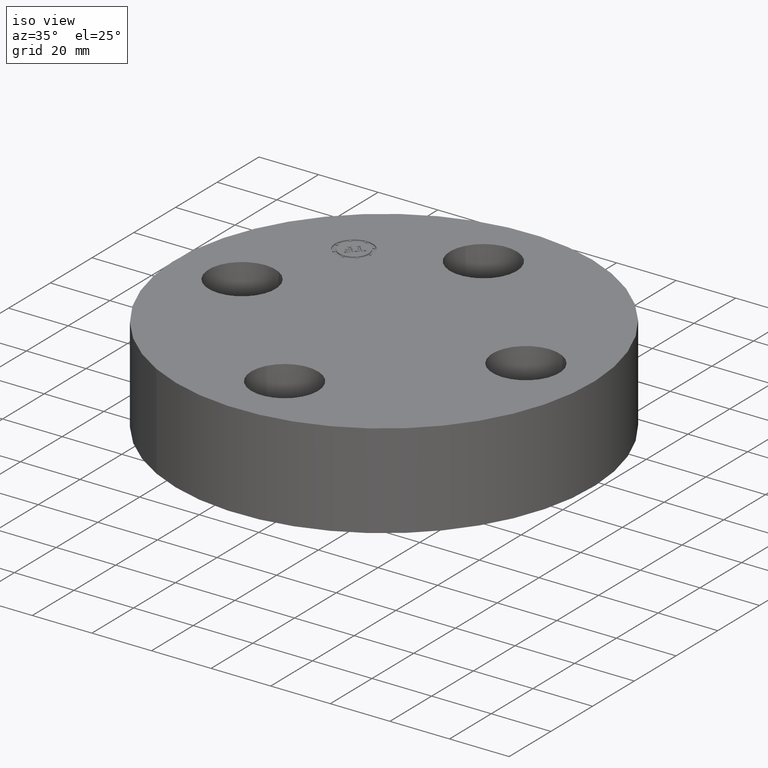
[diagram: clean part render]
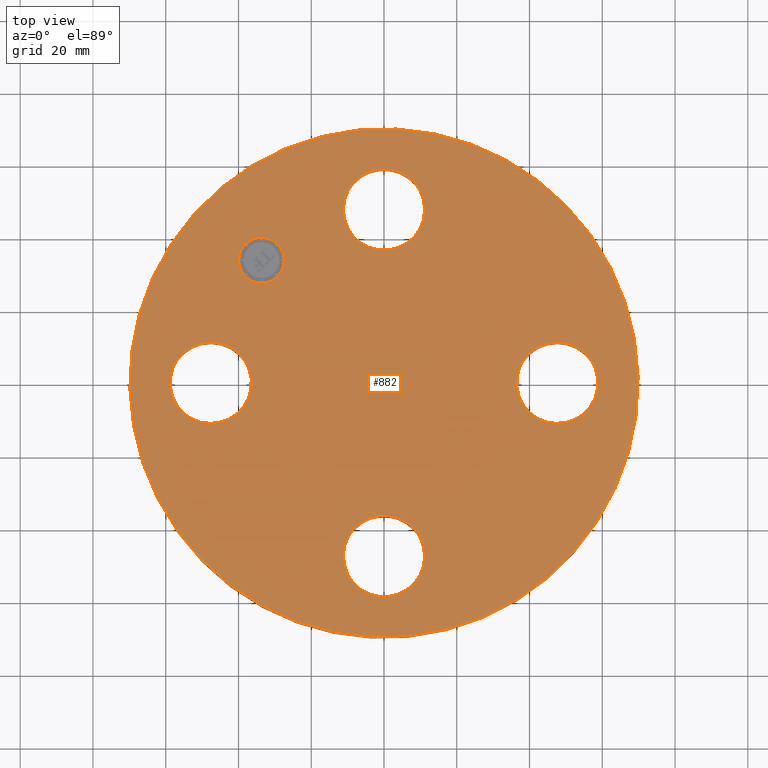
[diagram: tour spotlight — one face highlighted and labeled with its STEP entity id]
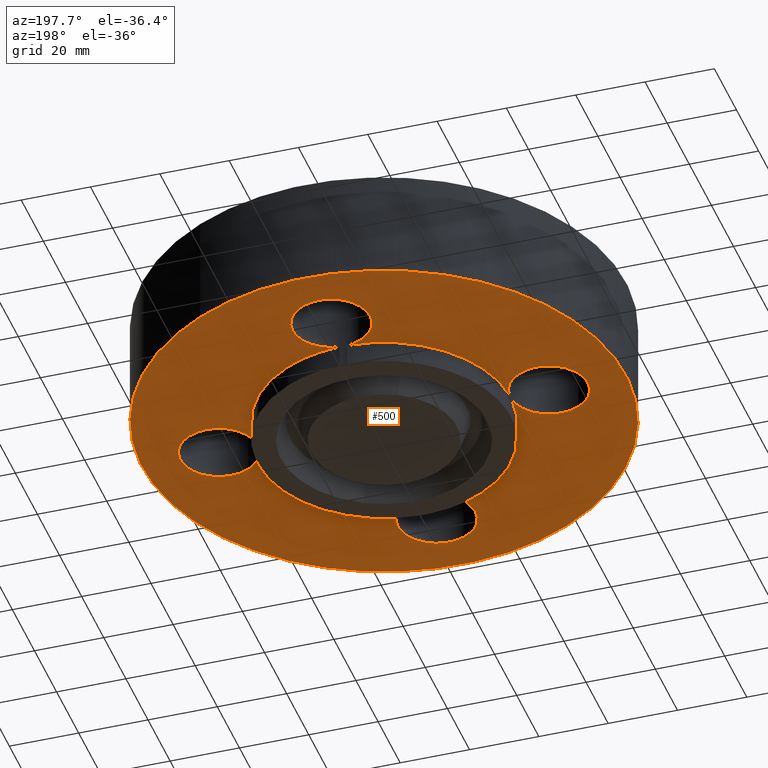
[diagram: tour spotlight — one face highlighted and labeled with its STEP entity id]
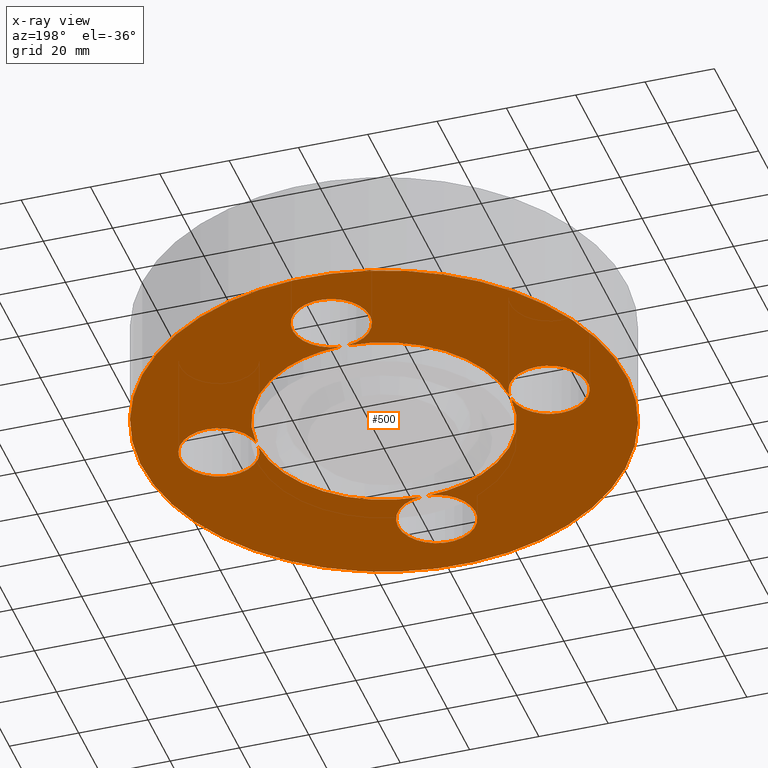
[diagram: x-ray of the same camera — body ghosted, this tour face saturated]
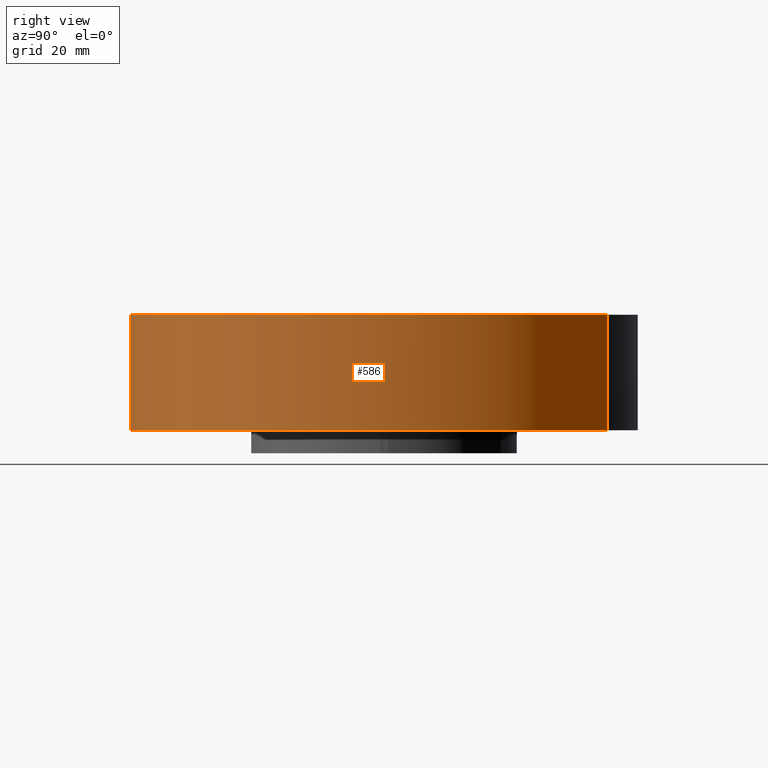
[diagram: tour spotlight — one face highlighted and labeled with its STEP entity id]
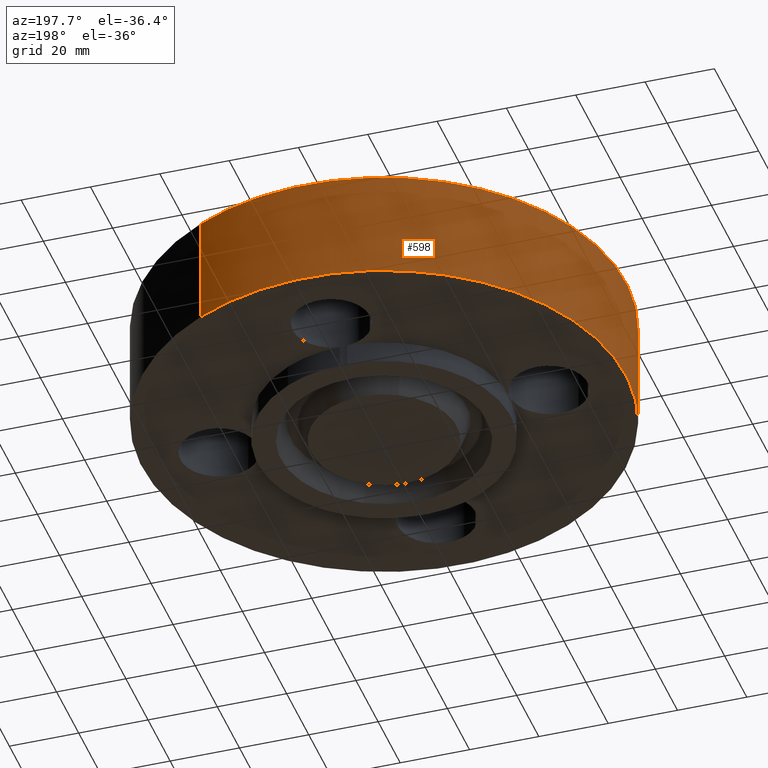
[diagram: tour spotlight — one face highlighted and labeled with its STEP entity id]
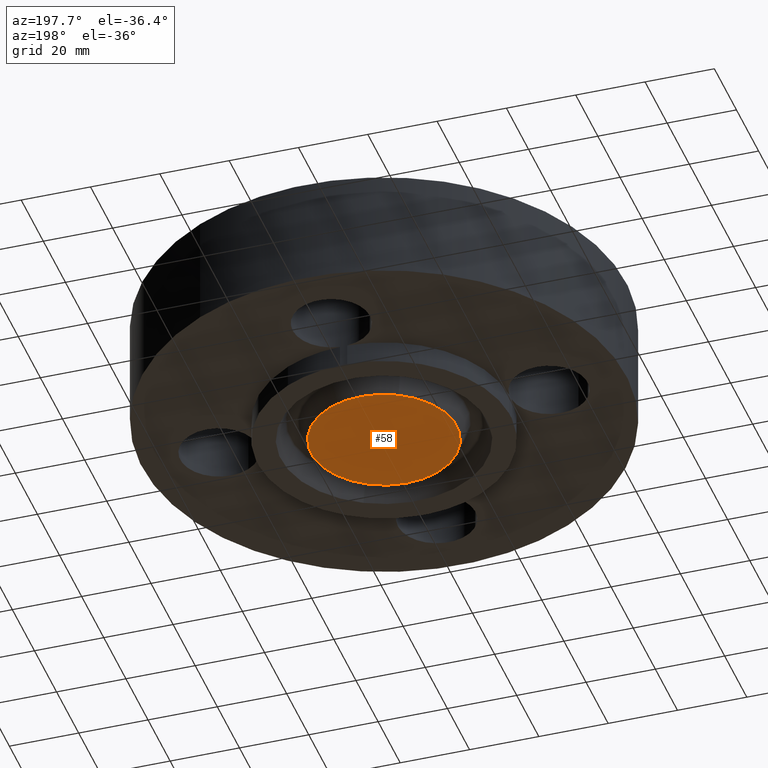
[diagram: tour spotlight — one face highlighted and labeled with its STEP entity id]
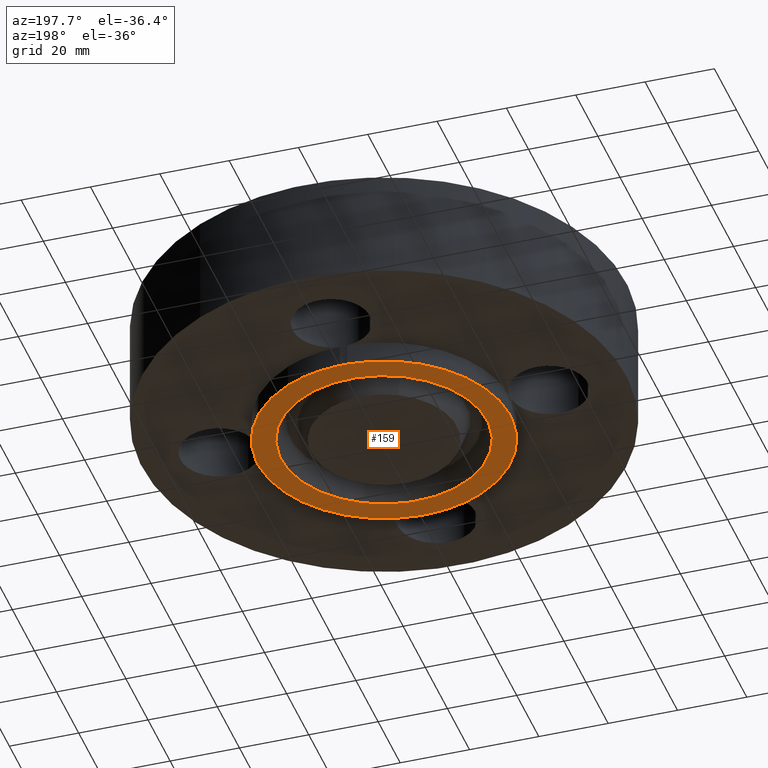
[diagram: tour spotlight — one face highlighted and labeled with its STEP entity id]
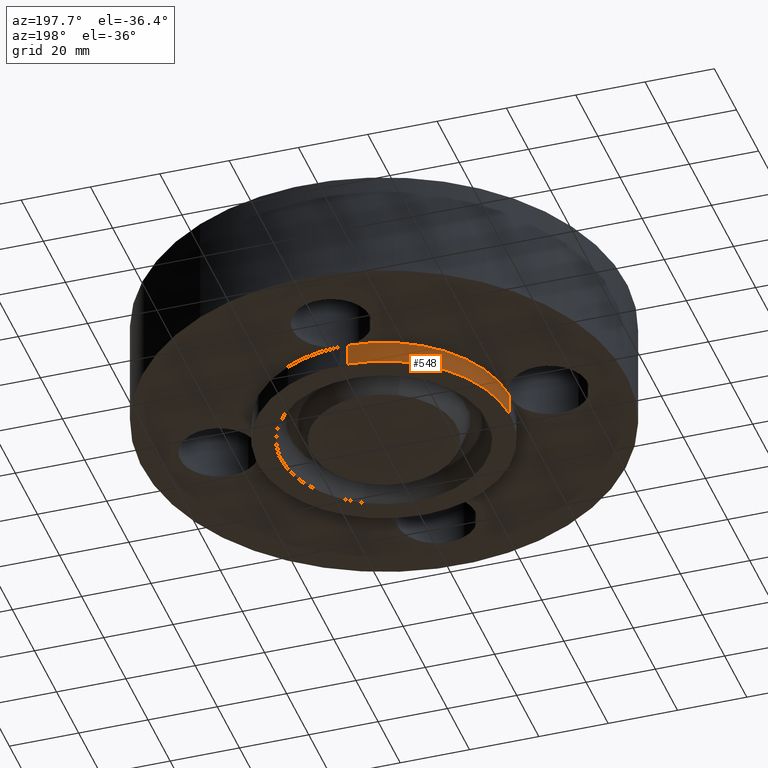
[diagram: tour spotlight — one face highlighted and labeled with its STEP entity id]
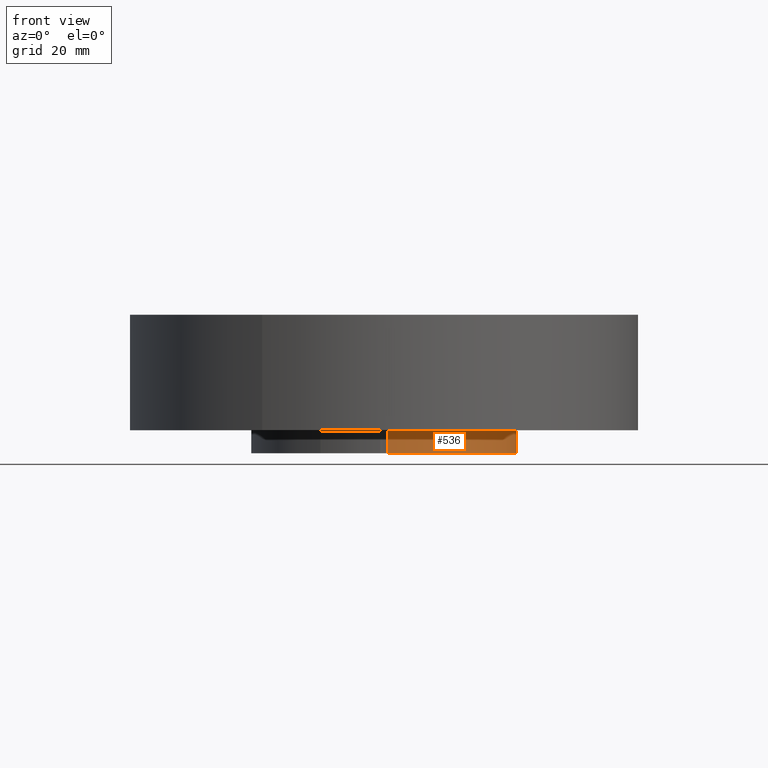
[diagram: tour spotlight — one face highlighted and labeled with its STEP entity id]
A machine part: a face-by-face anatomy tour. The part has 414 B-rep faces; the first image is the clean iso view, then the 8 largest visible faces are spotlighted one at a time (largest first), each with its STEP entity span.

Face 1 — top view, entity #882. In plain terms, the highlighted planar face has unit normal (0, 0, -1).
Definition (entity closure, byte-faithful):
#209=AXIS2_PLACEMENT_3D('Circle Axis2P3D',#207,#208,$) ;
#230=AXIS2_PLACEMENT_3D('Circle Axis2P3D',#228,#229,$) ;
#289=AXIS2_PLACEMENT_3D('Circle Axis2P3D',#287,#288,$) ;
#310=AXIS2_PLACEMENT_3D('Circle Axis2P3D',#308,#309,$) ;
#369=AXIS2_PLACEMENT_3D('Circle Axis2P3D',#367,#368,$) ;
#390=AXIS2_PLACEMENT_3D('Circle Axis2P3D',#388,#389,$) ;
#570=AXIS2_PLACEMENT_3D('Circle Axis2P3D',#568,#569,$) ;
#589=AXIS2_PLACEMENT_3D('Circle Axis2P3D',#587,#588,$) ;
#632=AXIS2_PLACEMENT_3D('Circle Axis2P3D',#630,#631,$) ;
#648=AXIS2_PLACEMENT_3D('Circle Axis2P3D',#646,#647,$) ;
#842=AXIS2_PLACEMENT_3D('Plane Axis2P3D',#839,#840,#841) ;
#866=AXIS2_PLACEMENT_3D('Circle Axis2P3D',#864,#865,$) ;
#875=AXIS2_PLACEMENT_3D('Circle Axis2P3D',#873,#874,$) ;
#171=CARTESIAN_POINT('Vertex',(-1.66405276302,0.386136327233,1.25000000001)) ;
#204=CARTESIAN_POINT('Vertex',(-2.08594723699,-0.386136327233,1.25000000001)) ;
#207=CARTESIAN_POINT('Axis2P3D Location',(-1.87500000001,-3.44431912262E-016,1.25000000001)) ;
#228=CARTESIAN_POINT('Axis2P3D Location',(-1.87500000001,-3.44431912262E-016,1.25000000001)) ;
#251=CARTESIAN_POINT('Vertex',(-0.386136327233,-1.66405276302,1.25000000001)) ;
#284=CARTESIAN_POINT('Vertex',(0.386136327233,-2.08594723699,1.25000000001)) ;
#287=CARTESIAN_POINT('Axis2P3D Location',(2.29621274841E-016,-1.87500000001,1.25000000001)) ;
#308=CARTESIAN_POINT('Axis2P3D Location',(2.29621274841E-016,-1.87500000001,1.25000000001)) ;
#331=CARTESIAN_POINT('Vertex',(1.66405276302,-0.386136327233,1.25000000001)) ;
#364=CARTESIAN_POINT('Vertex',(2.08594723699,0.386136327233,1.25000000001)) ;
#367=CARTESIAN_POINT('Axis2P3D Location',(1.87500000001,1.14810637421E-016,1.25000000001)) ;
#388=CARTESIAN_POINT('Axis2P3D Location',(1.87500000001,1.14810637421E-016,1.25000000001)) ;
#565=CARTESIAN_POINT('Vertex',(1.31842023117,2.41335204521,1.25000000001)) ;
#568=CARTESIAN_POINT('Axis2P3D Location',(0.,0.,1.25000000001)) ;
#572=CARTESIAN_POINT('Vertex',(-1.31842023117,-2.41335204521,1.25000000001)) ;
#587=CARTESIAN_POINT('Axis2P3D Location',(0.,0.,1.25000000001)) ;
#620=CARTESIAN_POINT('Vertex',(0.386136327233,1.66405276302,1.25000000001)) ;
#627=CARTESIAN_POINT('Vertex',(-0.386136327233,2.08594723699,1.25000000001)) ;
#630=CARTESIAN_POINT('Axis2P3D Location',(0.,1.87500000001,1.25000000001)) ;
#646=CARTESIAN_POINT('Axis2P3D Location',(0.,1.87500000001,1.25000000001)) ;
#839=CARTESIAN_POINT('Axis2P3D Location',(0.,2.75000000001,1.25000000001)) ;
#864=CARTESIAN_POINT('Axis2P3D Location',(-1.32582521473,1.32582521473,1.25000000001)) ;
#868=CARTESIAN_POINT('Vertex',(-1.50083414307,1.15081628639,1.25000000001)) ;
#870=CARTESIAN_POINT('Vertex',(-1.15081628639,1.50083414307,1.25000000001)) ;
#873=CARTESIAN_POINT('Axis2P3D Location',(-1.32582521473,1.32582521473,1.25000000001)) ;
#208=DIRECTION('Axis2P3D Direction',(0.,0.,-0.0393700787402)) ;
#229=DIRECTION('Axis2P3D Direction',(0.,0.,-0.0393700787402)) ;
#288=DIRECTION('Axis2P3D Direction',(-0.,0.,-0.0393700787402)) ;
#309=DIRECTION('Axis2P3D Direction',(-0.,0.,-0.0393700787402)) ;
#368=DIRECTION('Axis2P3D Direction',(0.,-0.,-0.0393700787402)) ;
#389=DIRECTION('Axis2P3D Direction',(0.,-0.,-0.0393700787402)) ;
#569=DIRECTION('Axis2P3D Direction',(0.,0.,-0.0393700787402)) ;
#588=DIRECTION('Axis2P3D Direction',(0.,0.,-0.0393700787402)) ;
#631=DIRECTION('Axis2P3D Direction',(0.,-0.,-0.0393700787402)) ;
#647=DIRECTION('Axis2P3D Direction',(0.,-0.,-0.0393700787402)) ;
#840=DIRECTION('Axis2P3D Direction',(0.,0.,-0.0393700787402)) ;
#841=DIRECTION('Axis2P3D XDirection',(0.0393700787402,0.,0.)) ;
#865=DIRECTION('Axis2P3D Direction',(0.,0.,-0.0393700787402)) ;
#874=DIRECTION('Axis2P3D Direction',(0.,0.,-0.0393700787402)) ;
#845=ORIENTED_EDGE('',*,*,#574,.F.) ;
#846=ORIENTED_EDGE('',*,*,#591,.F.) ;
#849=ORIENTED_EDGE('',*,*,#650,.T.) ;
#850=ORIENTED_EDGE('',*,*,#634,.T.) ;
#853=ORIENTED_EDGE('',*,*,#371,.T.) ;
#854=ORIENTED_EDGE('',*,*,#392,.T.) ;
#857=ORIENTED_EDGE('',*,*,#291,.T.) ;
#858=ORIENTED_EDGE('',*,*,#312,.T.) ;
#861=ORIENTED_EDGE('',*,*,#211,.T.) ;
#862=ORIENTED_EDGE('',*,*,#232,.T.) ;
#879=ORIENTED_EDGE('',*,*,#872,.T.) ;
#880=ORIENTED_EDGE('',*,*,#877,.T.) ;
#851=FACE_BOUND('',#848,.T.) ;
#855=FACE_BOUND('',#852,.T.) ;
#859=FACE_BOUND('',#856,.T.) ;
#863=FACE_BOUND('',#860,.T.) ;
#881=FACE_BOUND('',#878,.T.) ;
#882=ADVANCED_FACE('PartBody',(#847,#851,#855,#859,#863,#881),#843,.F.) ;
#210=CIRCLE('generated circle',#209,0.440000000002) ;
#231=CIRCLE('generated circle',#230,0.440000000002) ;
#290=CIRCLE('generated circle',#289,0.440000000002) ;
#311=CIRCLE('generated circle',#310,0.440000000002) ;
#370=CIRCLE('generated circle',#369,0.440000000002) ;
#391=CIRCLE('generated circle',#390,0.440000000002) ;
#571=CIRCLE('generated circle',#570,2.75000000001) ;
#590=CIRCLE('generated circle',#589,2.75000000001) ;
#633=CIRCLE('generated circle',#632,0.440000000002) ;
#649=CIRCLE('generated circle',#648,0.440000000002) ;
#867=CIRCLE('generated circle',#866,0.247500000001) ;
#876=CIRCLE('generated circle',#875,0.247500000001) ;
#211=EDGE_CURVE('',#172,#205,#210,.T.) ;
#232=EDGE_CURVE('',#205,#172,#231,.T.) ;
#291=EDGE_CURVE('',#252,#285,#290,.T.) ;
#312=EDGE_CURVE('',#285,#252,#311,.T.) ;
#371=EDGE_CURVE('',#332,#365,#370,.T.) ;
#392=EDGE_CURVE('',#365,#332,#391,.T.) ;
#574=EDGE_CURVE('',#566,#573,#571,.T.) ;
#591=EDGE_CURVE('',#573,#566,#590,.T.) ;
#634=EDGE_CURVE('',#621,#628,#633,.T.) ;
#650=EDGE_CURVE('',#628,#621,#649,.T.) ;
#872=EDGE_CURVE('',#869,#871,#867,.T.) ;
#877=EDGE_CURVE('',#871,#869,#876,.T.) ;
#844=EDGE_LOOP('',(#845,#846)) ;
#848=EDGE_LOOP('',(#849,#850)) ;
#852=EDGE_LOOP('',(#853,#854)) ;
#856=EDGE_LOOP('',(#857,#858)) ;
#860=EDGE_LOOP('',(#861,#862)) ;
#878=EDGE_LOOP('',(#879,#880)) ;
#847=FACE_OUTER_BOUND('',#844,.T.) ;
#843=PLANE('',#842) ;
#172=VERTEX_POINT('',#171) ;
#205=VERTEX_POINT('',#204) ;
#252=VERTEX_POINT('',#251) ;
#285=VERTEX_POINT('',#284) ;
#332=VERTEX_POINT('',#331) ;
#365=VERTEX_POINT('',#364) ;
#566=VERTEX_POINT('',#565) ;
#573=VERTEX_POINT('',#572) ;
#621=VERTEX_POINT('',#620) ;
#628=VERTEX_POINT('',#627) ;
#869=VERTEX_POINT('',#868) ;
#871=VERTEX_POINT('',#870) ;

Face 2 — auxiliary view, entity #500. An x-ray twin of the same camera follows (body ghosted, this face saturated) — the face is partly hidden behind the body. In plain terms, the highlighted planar face has unit normal (0, 0, -1).
Definition (entity closure, byte-faithful):
#176=AXIS2_PLACEMENT_3D('Circle Axis2P3D',#174,#175,$) ;
#195=AXIS2_PLACEMENT_3D('Circle Axis2P3D',#193,#194,$) ;
#225=AXIS2_PLACEMENT_3D('Circle Axis2P3D',#223,#224,$) ;
#256=AXIS2_PLACEMENT_3D('Circle Axis2P3D',#254,#255,$) ;
#275=AXIS2_PLACEMENT_3D('Circle Axis2P3D',#273,#274,$) ;
#305=AXIS2_PLACEMENT_3D('Circle Axis2P3D',#303,#304,$) ;
#336=AXIS2_PLACEMENT_3D('Circle Axis2P3D',#334,#335,$) ;
#355=AXIS2_PLACEMENT_3D('Circle Axis2P3D',#353,#354,$) ;
#385=AXIS2_PLACEMENT_3D('Circle Axis2P3D',#383,#384,$) ;
#403=AXIS2_PLACEMENT_3D('Plane Axis2P3D',#400,#401,#402) ;
#407=AXIS2_PLACEMENT_3D('Circle Axis2P3D',#405,#406,$) ;
#416=AXIS2_PLACEMENT_3D('Circle Axis2P3D',#414,#415,$) ;
#425=AXIS2_PLACEMENT_3D('Circle Axis2P3D',#423,#424,$) ;
#430=AXIS2_PLACEMENT_3D('Circle Axis2P3D',#428,#429,$) ;
#437=AXIS2_PLACEMENT_3D('Circle Axis2P3D',#435,#436,$) ;
#444=AXIS2_PLACEMENT_3D('Circle Axis2P3D',#442,#443,$) ;
#451=AXIS2_PLACEMENT_3D('Circle Axis2P3D',#449,#450,$) ;
#458=AXIS2_PLACEMENT_3D('Circle Axis2P3D',#456,#457,$) ;
#465=AXIS2_PLACEMENT_3D('Circle Axis2P3D',#463,#464,$) ;
#470=AXIS2_PLACEMENT_3D('Circle Axis2P3D',#468,#469,$) ;
#477=AXIS2_PLACEMENT_3D('Circle Axis2P3D',#475,#476,$) ;
#169=CARTESIAN_POINT('Vertex',(-1.66405276302,0.386136327233,0.)) ;
#174=CARTESIAN_POINT('Axis2P3D Location',(-1.87500000001,-3.44431912262E-016,0.)) ;
#178=CARTESIAN_POINT('Vertex',(-1.43691500001,0.0410064967415,1.39870617276E-016)) ;
#190=CARTESIAN_POINT('Vertex',(-1.43691500001,-0.0410064967415,1.39870617276E-016)) ;
#193=CARTESIAN_POINT('Axis2P3D Location',(-1.87500000001,-3.44431912262E-016,0.)) ;
#197=CARTESIAN_POINT('Vertex',(-2.08594723699,-0.386136327233,0.)) ;
#223=CARTESIAN_POINT('Axis2P3D Location',(-1.87500000001,-3.44431912262E-016,0.)) ;
#249=CARTESIAN_POINT('Vertex',(-0.386136327233,-1.66405276302,0.)) ;
#254=CARTESIAN_POINT('Axis2P3D Location',(2.29621274841E-016,-1.87500000001,0.)) ;
#258=CARTESIAN_POINT('Vertex',(-0.0410064967415,-1.43691500001,1.39870617276E-016)) ;
#270=CARTESIAN_POINT('Vertex',(0.0410064967415,-1.43691500001,1.39870617276E-016)) ;
#273=CARTESIAN_POINT('Axis2P3D Location',(2.29621274841E-016,-1.87500000001,0.)) ;
#277=CARTESIAN_POINT('Vertex',(0.386136327233,-2.08594723699,0.)) ;
#303=CARTESIAN_POINT('Axis2P3D Location',(2.29621274841E-016,-1.87500000001,0.)) ;
#329=CARTESIAN_POINT('Vertex',(1.66405276302,-0.386136327233,0.)) ;
#334=CARTESIAN_POINT('Axis2P3D Location',(1.87500000001,1.14810637421E-016,0.)) ;
#338=CARTESIAN_POINT('Vertex',(1.43691500001,-0.0410064967415,1.39870617276E-016)) ;
#350=CARTESIAN_POINT('Vertex',(1.43691500001,0.0410064967415,1.39870617276E-016)) ;
#353=CARTESIAN_POINT('Axis2P3D Location',(1.87500000001,1.14810637421E-016,0.)) ;
#357=CARTESIAN_POINT('Vertex',(2.08594723699,0.386136327233,0.)) ;
#383=CARTESIAN_POINT('Axis2P3D Location',(1.87500000001,1.14810637421E-016,0.)) ;
#400=CARTESIAN_POINT('Axis2P3D Location',(0.,1.43750000001,0.)) ;
#405=CARTESIAN_POINT('Axis2P3D Location',(0.,0.,0.)) ;
#409=CARTESIAN_POINT('Vertex',(-1.31842023117,-2.41335204521,2.79741234551E-016)) ;
#411=CARTESIAN_POINT('Vertex',(1.31842023117,2.41335204521,2.79741234551E-016)) ;
#414=CARTESIAN_POINT('Axis2P3D Location',(0.,0.,0.)) ;
#423=CARTESIAN_POINT('Axis2P3D Location',(0.,0.,0.)) ;
#428=CARTESIAN_POINT('Axis2P3D Location',(0.,0.,0.)) ;
#432=CARTESIAN_POINT('Vertex',(0.689174211746,1.26152493272,1.39870617276E-016)) ;
#435=CARTESIAN_POINT('Axis2P3D Location',(0.,0.,0.)) ;
#439=CARTESIAN_POINT('Vertex',(0.0410064967415,1.43691500001,1.39870617276E-016)) ;
#442=CARTESIAN_POINT('Axis2P3D Location',(1.74838271595E-017,1.87500000001,0.)) ;
#446=CARTESIAN_POINT('Vertex',(0.386136327233,1.66405276302,0.)) ;
#449=CARTESIAN_POINT('Axis2P3D Location',(5.24514814784E-017,1.87500000001,0.)) ;
#453=CARTESIAN_POINT('Vertex',(-0.386136327233,2.08594723699,0.)) ;
#456=CARTESIAN_POINT('Axis2P3D Location',(1.74838271595E-017,1.87500000001,0.)) ;
#460=CARTESIAN_POINT('Vertex',(-0.0410064967415,1.43691500001,1.39870617276E-016)) ;
#463=CARTESIAN_POINT('Axis2P3D Location',(0.,0.,0.)) ;
#468=CARTESIAN_POINT('Axis2P3D Location',(0.,0.,0.)) ;
#472=CARTESIAN_POINT('Vertex',(-0.689174211746,-1.26152493272,1.39870617276E-016)) ;
#475=CARTESIAN_POINT('Axis2P3D Location',(0.,0.,0.)) ;
#175=DIRECTION('Axis2P3D Direction',(0.,0.,-0.0393700787402)) ;
#194=DIRECTION('Axis2P3D Direction',(0.,0.,-0.0393700787402)) ;
#224=DIRECTION('Axis2P3D Direction',(0.,0.,-0.0393700787402)) ;
#255=DIRECTION('Axis2P3D Direction',(-0.,0.,-0.0393700787402)) ;
#274=DIRECTION('Axis2P3D Direction',(-0.,0.,-0.0393700787402)) ;
#304=DIRECTION('Axis2P3D Direction',(-0.,0.,-0.0393700787402)) ;
#335=DIRECTION('Axis2P3D Direction',(0.,-0.,-0.0393700787402)) ;
#354=DIRECTION('Axis2P3D Direction',(0.,-0.,-0.0393700787402)) ;
#384=DIRECTION('Axis2P3D Direction',(0.,-0.,-0.0393700787402)) ;
#401=DIRECTION('Axis2P3D Direction',(0.,0.,-0.0393700787402)) ;
#402=DIRECTION('Axis2P3D XDirection',(0.0393700787402,0.,0.)) ;
#406=DIRECTION('Axis2P3D Direction',(0.,0.,-0.0393700787402)) ;
#415=DIRECTION('Axis2P3D Direction',(0.,0.,-0.0393700787402)) ;
#424=DIRECTION('Axis2P3D Direction',(0.,0.,-0.0393700787402)) ;
#429=DIRECTION('Axis2P3D Direction',(0.,0.,-0.0393700787402)) ;
#436=DIRECTION('Axis2P3D Direction',(0.,0.,-0.0393700787402)) ;
#443=DIRECTION('Axis2P3D Direction',(0.,0.,-0.0393700787402)) ;
#450=DIRECTION('Axis2P3D Direction',(0.,0.,-0.0393700787402)) ;
#457=DIRECTION('Axis2P3D Direction',(0.,0.,-0.0393700787402)) ;
#464=DIRECTION('Axis2P3D Direction',(0.,0.,-0.0393700787402)) ;
#469=DIRECTION('Axis2P3D Direction',(0.,0.,-0.0393700787402)) ;
#476=DIRECTION('Axis2P3D Direction',(0.,0.,-0.0393700787402)) ;
#420=ORIENTED_EDGE('',*,*,#413,.T.) ;
#421=ORIENTED_EDGE('',*,*,#418,.T.) ;
#481=ORIENTED_EDGE('',*,*,#427,.F.) ;
#482=ORIENTED_EDGE('',*,*,#340,.F.) ;
#483=ORIENTED_EDGE('',*,*,#387,.F.) ;
#484=ORIENTED_EDGE('',*,*,#359,.F.) ;
#485=ORIENTED_EDGE('',*,*,#434,.F.) ;
#486=ORIENTED_EDGE('',*,*,#441,.F.) ;
#487=ORIENTED_EDGE('',*,*,#448,.F.) ;
#488=ORIENTED_EDGE('',*,*,#455,.F.) ;
#489=ORIENTED_EDGE('',*,*,#462,.F.) ;
#490=ORIENTED_EDGE('',*,*,#467,.F.) ;
#491=ORIENTED_EDGE('',*,*,#180,.F.) ;
#492=ORIENTED_EDGE('',*,*,#227,.F.) ;
#493=ORIENTED_EDGE('',*,*,#199,.F.) ;
#494=ORIENTED_EDGE('',*,*,#474,.F.) ;
#495=ORIENTED_EDGE('',*,*,#479,.F.) ;
#496=ORIENTED_EDGE('',*,*,#260,.F.) ;
#497=ORIENTED_EDGE('',*,*,#307,.F.) ;
#498=ORIENTED_EDGE('',*,*,#279,.F.) ;
#499=FACE_BOUND('',#480,.T.) ;
#500=ADVANCED_FACE('PartBody',(#422,#499),#404,.T.) ;
#177=CIRCLE('generated circle',#176,0.440000000002) ;
#196=CIRCLE('generated circle',#195,0.440000000002) ;
#226=CIRCLE('generated circle',#225,0.440000000002) ;
#257=CIRCLE('generated circle',#256,0.440000000002) ;
#276=CIRCLE('generated circle',#275,0.440000000002) ;
#306=CIRCLE('generated circle',#305,0.440000000002) ;
#337=CIRCLE('generated circle',#336,0.440000000002) ;
#356=CIRCLE('generated circle',#355,0.440000000002) ;
#386=CIRCLE('generated circle',#385,0.440000000002) ;
#408=CIRCLE('generated circle',#407,2.75000000001) ;
#417=CIRCLE('generated circle',#416,2.75000000001) ;
#426=CIRCLE('generated circle',#425,1.43750000001) ;
#431=CIRCLE('generated circle',#430,1.43750000001) ;
#438=CIRCLE('generated circle',#437,1.43750000001) ;
#445=CIRCLE('generated circle',#444,0.440000000002) ;
#452=CIRCLE('generated circle',#451,0.440000000002) ;
#459=CIRCLE('generated circle',#458,0.440000000002) ;
#466=CIRCLE('generated circle',#465,1.43750000001) ;
#471=CIRCLE('generated circle',#470,1.43750000001) ;
#478=CIRCLE('generated circle',#477,1.43750000001) ;
#180=EDGE_CURVE('',#170,#179,#177,.T.) ;
#199=EDGE_CURVE('',#191,#198,#196,.T.) ;
#227=EDGE_CURVE('',#198,#170,#226,.T.) ;
#260=EDGE_CURVE('',#250,#259,#257,.T.) ;
#279=EDGE_CURVE('',#271,#278,#276,.T.) ;
#307=EDGE_CURVE('',#278,#250,#306,.T.) ;
#340=EDGE_CURVE('',#330,#339,#337,.T.) ;
#359=EDGE_CURVE('',#351,#358,#356,.T.) ;
#387=EDGE_CURVE('',#358,#330,#386,.T.) ;
#413=EDGE_CURVE('',#410,#412,#408,.T.) ;
#418=EDGE_CURVE('',#412,#410,#417,.T.) ;
#427=EDGE_CURVE('',#339,#271,#426,.T.) ;
#434=EDGE_CURVE('',#433,#351,#431,.T.) ;
#441=EDGE_CURVE('',#440,#433,#438,.T.) ;
#448=EDGE_CURVE('',#447,#440,#445,.T.) ;
#455=EDGE_CURVE('',#454,#447,#452,.T.) ;
#462=EDGE_CURVE('',#461,#454,#459,.T.) ;
#467=EDGE_CURVE('',#179,#461,#466,.T.) ;
#474=EDGE_CURVE('',#473,#191,#471,.T.) ;
#479=EDGE_CURVE('',#259,#473,#478,.T.) ;
#419=EDGE_LOOP('',(#420,#421)) ;
#480=EDGE_LOOP('',(#481,#482,#483,#484,#485,#486,#487,#488,#489,#490,#491,#492,#493,#494,#495,#496,#497,#498)) ;
#422=FACE_OUTER_BOUND('',#419,.T.) ;
#404=PLANE('',#403) ;
#170=VERTEX_POINT('',#169) ;
#179=VERTEX_POINT('',#178) ;
#191=VERTEX_POINT('',#190) ;
#198=VERTEX_POINT('',#197) ;
#250=VERTEX_POINT('',#249) ;
#259=VERTEX_POINT('',#258) ;
#271=VERTEX_POINT('',#270) ;
#278=VERTEX_POINT('',#277) ;
#330=VERTEX_POINT('',#329) ;
#339=VERTEX_POINT('',#338) ;
#351=VERTEX_POINT('',#350) ;
#358=VERTEX_POINT('',#357) ;
#410=VERTEX_POINT('',#409) ;
#412=VERTEX_POINT('',#411) ;
#433=VERTEX_POINT('',#432) ;
#440=VERTEX_POINT('',#439) ;
#447=VERTEX_POINT('',#446) ;
#454=VERTEX_POINT('',#453) ;
#461=VERTEX_POINT('',#460) ;
#473=VERTEX_POINT('',#472) ;

Face 3 — right view, entity #586. In plain terms, the highlighted cylindrical surface (partial cylindrical patch) has radius 69.85 mm, axis along (0, 0, -1).
Definition (entity closure, byte-faithful):
#416=AXIS2_PLACEMENT_3D('Circle Axis2P3D',#414,#415,$) ;
#559=AXIS2_PLACEMENT_3D('Cylinder Axis2P3D',#556,#557,#558) ;
#570=AXIS2_PLACEMENT_3D('Circle Axis2P3D',#568,#569,$) ;
#409=CARTESIAN_POINT('Vertex',(-1.31842023117,-2.41335204521,2.79741234551E-016)) ;
#411=CARTESIAN_POINT('Vertex',(1.31842023117,2.41335204521,2.79741234551E-016)) ;
#414=CARTESIAN_POINT('Axis2P3D Location',(0.,0.,0.)) ;
#556=CARTESIAN_POINT('Axis2P3D Location',(0.,0.,0.500000000002)) ;
#561=CARTESIAN_POINT('Line Origine',(1.31842023117,2.41335204521,0.625000000003)) ;
#565=CARTESIAN_POINT('Vertex',(1.31842023117,2.41335204521,1.25000000001)) ;
#568=CARTESIAN_POINT('Axis2P3D Location',(0.,0.,1.25000000001)) ;
#572=CARTESIAN_POINT('Vertex',(-1.31842023117,-2.41335204521,1.25000000001)) ;
#575=CARTESIAN_POINT('Line Origine',(-1.31842023117,-2.41335204521,0.625000000003)) ;
#415=DIRECTION('Axis2P3D Direction',(0.,0.,-0.0393700787402)) ;
#557=DIRECTION('Axis2P3D Direction',(0.,0.,-0.0393700787402)) ;
#558=DIRECTION('Axis2P3D XDirection',(-0.0188750212049,-0.0345504945626,0.)) ;
#562=DIRECTION('Vector Direction',(0.,0.,-0.0393700787402)) ;
#569=DIRECTION('Axis2P3D Direction',(0.,0.,-0.0393700787402)) ;
#576=DIRECTION('Vector Direction',(0.,0.,-0.0393700787402)) ;
#563=VECTOR('Line Direction',#562,0.0393700787402) ;
#577=VECTOR('Line Direction',#576,0.0393700787402) ;
#581=ORIENTED_EDGE('',*,*,#418,.F.) ;
#582=ORIENTED_EDGE('',*,*,#567,.T.) ;
#583=ORIENTED_EDGE('',*,*,#574,.T.) ;
#584=ORIENTED_EDGE('',*,*,#579,.F.) ;
#586=ADVANCED_FACE('PartBody',(#585),#560,.T.) ;
#417=CIRCLE('generated circle',#416,2.75000000001) ;
#571=CIRCLE('generated circle',#570,2.75000000001) ;
#560=CYLINDRICAL_SURFACE('generated cylinder',#559,2.75000000001) ;
#418=EDGE_CURVE('',#412,#410,#417,.T.) ;
#567=EDGE_CURVE('',#412,#566,#564,.F.) ;
#574=EDGE_CURVE('',#566,#573,#571,.T.) ;
#579=EDGE_CURVE('',#410,#573,#578,.F.) ;
#580=EDGE_LOOP('',(#581,#582,#583,#584)) ;
#585=FACE_OUTER_BOUND('',#580,.T.) ;
#564=LINE('Line',#561,#563) ;
#578=LINE('Line',#575,#577) ;
#410=VERTEX_POINT('',#409) ;
#412=VERTEX_POINT('',#411) ;
#566=VERTEX_POINT('',#565) ;
#573=VERTEX_POINT('',#572) ;

Face 4 — auxiliary view, entity #598. In plain terms, the highlighted cylindrical surface (partial cylindrical patch) has radius 69.85 mm, axis along (0, 0, -1).
Definition (entity closure, byte-faithful):
#407=AXIS2_PLACEMENT_3D('Circle Axis2P3D',#405,#406,$) ;
#559=AXIS2_PLACEMENT_3D('Cylinder Axis2P3D',#556,#557,#558) ;
#589=AXIS2_PLACEMENT_3D('Circle Axis2P3D',#587,#588,$) ;
#405=CARTESIAN_POINT('Axis2P3D Location',(0.,0.,0.)) ;
#409=CARTESIAN_POINT('Vertex',(-1.31842023117,-2.41335204521,2.79741234551E-016)) ;
#411=CARTESIAN_POINT('Vertex',(1.31842023117,2.41335204521,2.79741234551E-016)) ;
#556=CARTESIAN_POINT('Axis2P3D Location',(0.,0.,0.500000000002)) ;
#561=CARTESIAN_POINT('Line Origine',(1.31842023117,2.41335204521,0.625000000003)) ;
#565=CARTESIAN_POINT('Vertex',(1.31842023117,2.41335204521,1.25000000001)) ;
#572=CARTESIAN_POINT('Vertex',(-1.31842023117,-2.41335204521,1.25000000001)) ;
#575=CARTESIAN_POINT('Line Origine',(-1.31842023117,-2.41335204521,0.625000000003)) ;
#587=CARTESIAN_POINT('Axis2P3D Location',(0.,0.,1.25000000001)) ;
#406=DIRECTION('Axis2P3D Direction',(0.,0.,-0.0393700787402)) ;
#557=DIRECTION('Axis2P3D Direction',(0.,0.,-0.0393700787402)) ;
#558=DIRECTION('Axis2P3D XDirection',(-0.0188750212049,-0.0345504945626,0.)) ;
#562=DIRECTION('Vector Direction',(0.,0.,-0.0393700787402)) ;
#576=DIRECTION('Vector Direction',(0.,0.,-0.0393700787402)) ;
#588=DIRECTION('Axis2P3D Direction',(0.,0.,-0.0393700787402)) ;
#563=VECTOR('Line Direction',#562,0.0393700787402) ;
#577=VECTOR('Line Direction',#576,0.0393700787402) ;
#593=ORIENTED_EDGE('',*,*,#413,.F.) ;
#594=ORIENTED_EDGE('',*,*,#579,.T.) ;
#595=ORIENTED_EDGE('',*,*,#591,.T.) ;
#596=ORIENTED_EDGE('',*,*,#567,.F.) ;
#598=ADVANCED_FACE('PartBody',(#597),#560,.T.) ;
#408=CIRCLE('generated circle',#407,2.75000000001) ;
#590=CIRCLE('generated circle',#589,2.75000000001) ;
#560=CYLINDRICAL_SURFACE('generated cylinder',#559,2.75000000001) ;
#413=EDGE_CURVE('',#410,#412,#408,.T.) ;
#567=EDGE_CURVE('',#412,#566,#564,.F.) ;
#579=EDGE_CURVE('',#410,#573,#578,.F.) ;
#591=EDGE_CURVE('',#573,#566,#590,.T.) ;
#592=EDGE_LOOP('',(#593,#594,#595,#596)) ;
#597=FACE_OUTER_BOUND('',#592,.T.) ;
#564=LINE('Line',#561,#563) ;
#578=LINE('Line',#575,#577) ;
#410=VERTEX_POINT('',#409) ;
#412=VERTEX_POINT('',#411) ;
#566=VERTEX_POINT('',#565) ;
#573=VERTEX_POINT('',#572) ;

Face 5 — auxiliary view, entity #58. In plain terms, the highlighted planar face has unit normal (0, 0, -1).
Definition (entity closure, byte-faithful):
#38=AXIS2_PLACEMENT_3D('Plane Axis2P3D',#35,#36,#37) ;
#42=AXIS2_PLACEMENT_3D('Circle Axis2P3D',#40,#41,$) ;
#51=AXIS2_PLACEMENT_3D('Circle Axis2P3D',#49,#50,$) ;
#35=CARTESIAN_POINT('Axis2P3D Location',(0.,0.,-0.250000000001)) ;
#40=CARTESIAN_POINT('Axis2P3D Location',(-1.39870617276E-016,1.39870617276E-016,-0.250000000001)) ;
#44=CARTESIAN_POINT('Vertex',(-0.396964345966,0.726638361248,-0.250000000001)) ;
#46=CARTESIAN_POINT('Vertex',(0.396964345966,-0.726638361248,-0.250000000001)) ;
#49=CARTESIAN_POINT('Axis2P3D Location',(3.49676543189E-016,-3.49676543189E-017,-0.250000000001)) ;
#36=DIRECTION('Axis2P3D Direction',(0.,0.,-0.0393700787402)) ;
#37=DIRECTION('Axis2P3D XDirection',(0.0393700787402,0.,0.)) ;
#41=DIRECTION('Axis2P3D Direction',(0.,0.,-0.0393700787402)) ;
#50=DIRECTION('Axis2P3D Direction',(0.,0.,-0.0393700787402)) ;
#55=ORIENTED_EDGE('',*,*,#48,.T.) ;
#56=ORIENTED_EDGE('',*,*,#53,.T.) ;
#58=ADVANCED_FACE('PartBody',(#57),#39,.T.) ;
#43=CIRCLE('generated circle',#42,0.828000000003) ;
#52=CIRCLE('generated circle',#51,0.828000000003) ;
#48=EDGE_CURVE('',#45,#47,#43,.T.) ;
#53=EDGE_CURVE('',#47,#45,#52,.T.) ;
#54=EDGE_LOOP('',(#55,#56)) ;
#57=FACE_OUTER_BOUND('',#54,.T.) ;
#39=PLANE('',#38) ;
#45=VERTEX_POINT('',#44) ;
#47=VERTEX_POINT('',#46) ;

Face 6 — auxiliary view, entity #159. In plain terms, the highlighted planar face has unit normal (0, 0, -1).
Definition (entity closure, byte-faithful):
#38=AXIS2_PLACEMENT_3D('Plane Axis2P3D',#35,#36,#37) ;
#61=AXIS2_PLACEMENT_3D('Circle Axis2P3D',#59,#60,$) ;
#70=AXIS2_PLACEMENT_3D('Circle Axis2P3D',#68,#69,$) ;
#77=AXIS2_PLACEMENT_3D('Circle Axis2P3D',#75,#76,$) ;
#84=AXIS2_PLACEMENT_3D('Circle Axis2P3D',#82,#83,$) ;
#91=AXIS2_PLACEMENT_3D('Circle Axis2P3D',#89,#90,$) ;
#98=AXIS2_PLACEMENT_3D('Circle Axis2P3D',#96,#97,$) ;
#105=AXIS2_PLACEMENT_3D('Circle Axis2P3D',#103,#104,$) ;
#112=AXIS2_PLACEMENT_3D('Circle Axis2P3D',#110,#111,$) ;
#119=AXIS2_PLACEMENT_3D('Circle Axis2P3D',#117,#118,$) ;
#126=AXIS2_PLACEMENT_3D('Circle Axis2P3D',#124,#125,$) ;
#143=AXIS2_PLACEMENT_3D('Circle Axis2P3D',#141,#142,$) ;
#152=AXIS2_PLACEMENT_3D('Circle Axis2P3D',#150,#151,$) ;
#35=CARTESIAN_POINT('Axis2P3D Location',(0.,0.,-0.250000000001)) ;
#59=CARTESIAN_POINT('Axis2P3D Location',(0.,0.,-0.250000000001)) ;
#63=CARTESIAN_POINT('Vertex',(1.43691500001,-0.0410064967415,-0.250000000001)) ;
#65=CARTESIAN_POINT('Vertex',(0.0410064967415,-1.43691500001,-0.250000000001)) ;
#68=CARTESIAN_POINT('Axis2P3D Location',(1.22386790116E-016,-1.87500000001,-0.250000000001)) ;
#72=CARTESIAN_POINT('Vertex',(-0.0410064967415,-1.43691500001,-0.250000000001)) ;
#75=CARTESIAN_POINT('Axis2P3D Location',(0.,0.,-0.250000000001)) ;
#79=CARTESIAN_POINT('Vertex',(-0.689174211746,-1.26152493272,-0.250000000001)) ;
#82=CARTESIAN_POINT('Axis2P3D Location',(0.,0.,-0.250000000001)) ;
#86=CARTESIAN_POINT('Vertex',(-1.43691500001,-0.0410064967415,-0.250000000001)) ;
#89=CARTESIAN_POINT('Axis2P3D Location',(-1.87500000001,-3.1470888887E-016,-0.250000000001)) ;
#93=CARTESIAN_POINT('Vertex',(-1.43691500001,0.0410064967415,-0.250000000001)) ;
#96=CARTESIAN_POINT('Axis2P3D Location',(0.,0.,-0.250000000001)) ;
#100=CARTESIAN_POINT('Vertex',(-0.0410064967415,1.43691500001,-0.250000000001)) ;
#103=CARTESIAN_POINT('Axis2P3D Location',(5.24514814784E-017,1.87500000001,-0.250000000001)) ;
#107=CARTESIAN_POINT('Vertex',(0.0410064967415,1.43691500001,-0.250000000001)) ;
#110=CARTESIAN_POINT('Axis2P3D Location',(0.,0.,-0.250000000001)) ;
#114=CARTESIAN_POINT('Vertex',(0.689174211746,1.26152493272,-0.250000000001)) ;
#117=CARTESIAN_POINT('Axis2P3D Location',(0.,0.,-0.250000000001)) ;
#121=CARTESIAN_POINT('Vertex',(1.43691500001,0.0410064967415,-0.250000000001)) ;
#124=CARTESIAN_POINT('Axis2P3D Location',(1.87500000001,-3.49676543189E-017,-0.250000000001)) ;
#141=CARTESIAN_POINT('Axis2P3D Location',(-1.04902962957E-016,2.79741234551E-016,-0.250000000001)) ;
#145=CARTESIAN_POINT('Vertex',(0.561886731246,-1.02852676254,-0.250000000001)) ;
#147=CARTESIAN_POINT('Vertex',(-0.561886731246,1.02852676254,-0.250000000001)) ;
#150=CARTESIAN_POINT('Axis2P3D Location',(-1.39870617276E-016,1.39870617276E-016,-0.250000000001)) ;
#36=DIRECTION('Axis2P3D Direction',(0.,0.,-0.0393700787402)) ;
#37=DIRECTION('Axis2P3D XDirection',(0.0393700787402,0.,0.)) ;
#60=DIRECTION('Axis2P3D Direction',(0.,0.,-0.0393700787402)) ;
#69=DIRECTION('Axis2P3D Direction',(0.,0.,-0.0393700787402)) ;
#76=DIRECTION('Axis2P3D Direction',(0.,0.,-0.0393700787402)) ;
#83=DIRECTION('Axis2P3D Direction',(0.,0.,-0.0393700787402)) ;
#90=DIRECTION('Axis2P3D Direction',(0.,0.,-0.0393700787402)) ;
#97=DIRECTION('Axis2P3D Direction',(0.,0.,-0.0393700787402)) ;
#104=DIRECTION('Axis2P3D Direction',(0.,0.,-0.0393700787402)) ;
#111=DIRECTION('Axis2P3D Direction',(0.,0.,-0.0393700787402)) ;
#118=DIRECTION('Axis2P3D Direction',(0.,0.,-0.0393700787402)) ;
#125=DIRECTION('Axis2P3D Direction',(0.,0.,-0.0393700787402)) ;
#142=DIRECTION('Axis2P3D Direction',(0.,0.,-0.0393700787402)) ;
#151=DIRECTION('Axis2P3D Direction',(0.,0.,-0.0393700787402)) ;
#130=ORIENTED_EDGE('',*,*,#67,.T.) ;
#131=ORIENTED_EDGE('',*,*,#74,.F.) ;
#132=ORIENTED_EDGE('',*,*,#81,.T.) ;
#133=ORIENTED_EDGE('',*,*,#88,.T.) ;
#134=ORIENTED_EDGE('',*,*,#95,.F.) ;
#135=ORIENTED_EDGE('',*,*,#102,.T.) ;
#136=ORIENTED_EDGE('',*,*,#109,.F.) ;
#137=ORIENTED_EDGE('',*,*,#116,.T.) ;
#138=ORIENTED_EDGE('',*,*,#123,.T.) ;
#139=ORIENTED_EDGE('',*,*,#128,.F.) ;
#156=ORIENTED_EDGE('',*,*,#149,.F.) ;
#157=ORIENTED_EDGE('',*,*,#154,.F.) ;
#158=FACE_BOUND('',#155,.T.) ;
#159=ADVANCED_FACE('PartBody',(#140,#158),#39,.T.) ;
#62=CIRCLE('generated circle',#61,1.43750000001) ;
#71=CIRCLE('generated circle',#70,0.440000000002) ;
#78=CIRCLE('generated circle',#77,1.43750000001) ;
#85=CIRCLE('generated circle',#84,1.43750000001) ;
#92=CIRCLE('generated circle',#91,0.440000000002) ;
#99=CIRCLE('generated circle',#98,1.43750000001) ;
#106=CIRCLE('generated circle',#105,0.440000000002) ;
#113=CIRCLE('generated circle',#112,1.43750000001) ;
#120=CIRCLE('generated circle',#119,1.43750000001) ;
#127=CIRCLE('generated circle',#126,0.440000000002) ;
#144=CIRCLE('generated circle',#143,1.172) ;
#153=CIRCLE('generated circle',#152,1.172) ;
#67=EDGE_CURVE('',#64,#66,#62,.T.) ;
#74=EDGE_CURVE('',#73,#66,#71,.T.) ;
#81=EDGE_CURVE('',#73,#80,#78,.T.) ;
#88=EDGE_CURVE('',#80,#87,#85,.T.) ;
#95=EDGE_CURVE('',#94,#87,#92,.T.) ;
#102=EDGE_CURVE('',#94,#101,#99,.T.) ;
#109=EDGE_CURVE('',#108,#101,#106,.T.) ;
#116=EDGE_CURVE('',#108,#115,#113,.T.) ;
#123=EDGE_CURVE('',#115,#122,#120,.T.) ;
#128=EDGE_CURVE('',#64,#122,#127,.T.) ;
#149=EDGE_CURVE('',#146,#148,#144,.T.) ;
#154=EDGE_CURVE('',#148,#146,#153,.T.) ;
#129=EDGE_LOOP('',(#130,#131,#132,#133,#134,#135,#136,#137,#138,#139)) ;
#155=EDGE_LOOP('',(#156,#157)) ;
#140=FACE_OUTER_BOUND('',#129,.T.) ;
#39=PLANE('',#38) ;
#64=VERTEX_POINT('',#63) ;
#66=VERTEX_POINT('',#65) ;
#73=VERTEX_POINT('',#72) ;
#80=VERTEX_POINT('',#79) ;
#87=VERTEX_POINT('',#86) ;
#94=VERTEX_POINT('',#93) ;
#101=VERTEX_POINT('',#100) ;
#108=VERTEX_POINT('',#107) ;
#115=VERTEX_POINT('',#114) ;
#122=VERTEX_POINT('',#121) ;
#146=VERTEX_POINT('',#145) ;
#148=VERTEX_POINT('',#147) ;

Face 7 — auxiliary view, entity #548. In plain terms, the highlighted cylindrical surface (partial cylindrical patch) has radius 36.5125 mm, axis along (0, 0, -1).
Definition (entity closure, byte-faithful):
#98=AXIS2_PLACEMENT_3D('Circle Axis2P3D',#96,#97,$) ;
#465=AXIS2_PLACEMENT_3D('Circle Axis2P3D',#463,#464,$) ;
#504=AXIS2_PLACEMENT_3D('Cylinder Axis2P3D',#501,#502,#503) ;
#93=CARTESIAN_POINT('Vertex',(-1.43691500001,0.0410064967415,-0.250000000001)) ;
#96=CARTESIAN_POINT('Axis2P3D Location',(0.,0.,-0.250000000001)) ;
#100=CARTESIAN_POINT('Vertex',(-0.0410064967415,1.43691500001,-0.250000000001)) ;
#178=CARTESIAN_POINT('Vertex',(-1.43691500001,0.0410064967415,1.39870617276E-016)) ;
#181=CARTESIAN_POINT('Line Origine',(-1.43691500001,0.0410064967415,0.625000000003)) ;
#460=CARTESIAN_POINT('Vertex',(-0.0410064967415,1.43691500001,1.39870617276E-016)) ;
#463=CARTESIAN_POINT('Axis2P3D Location',(0.,0.,0.)) ;
#501=CARTESIAN_POINT('Axis2P3D Location',(0.,0.,0.500000000002)) ;
#537=CARTESIAN_POINT('Line Origine',(-0.0410064967415,1.43691500001,-0.125)) ;
#97=DIRECTION('Axis2P3D Direction',(0.,0.,-0.0393700787402)) ;
#182=DIRECTION('Vector Direction',(0.,0.,-0.0393700787402)) ;
#464=DIRECTION('Axis2P3D Direction',(0.,0.,-0.0393700787402)) ;
#502=DIRECTION('Axis2P3D Direction',(0.,0.,-0.0393700787402)) ;
#503=DIRECTION('Axis2P3D XDirection',(0.00112308104735,0.0393540568299,0.)) ;
#538=DIRECTION('Vector Direction',(0.,0.,-0.0393700787402)) ;
#183=VECTOR('Line Direction',#182,0.0393700787402) ;
#539=VECTOR('Line Direction',#538,0.0393700787402) ;
#543=ORIENTED_EDGE('',*,*,#467,.T.) ;
#544=ORIENTED_EDGE('',*,*,#541,.T.) ;
#545=ORIENTED_EDGE('',*,*,#102,.F.) ;
#546=ORIENTED_EDGE('',*,*,#185,.F.) ;
#548=ADVANCED_FACE('PartBody',(#547),#505,.T.) ;
#99=CIRCLE('generated circle',#98,1.43750000001) ;
#466=CIRCLE('generated circle',#465,1.43750000001) ;
#505=CYLINDRICAL_SURFACE('generated cylinder',#504,1.43750000001) ;
#102=EDGE_CURVE('',#94,#101,#99,.T.) ;
#185=EDGE_CURVE('',#179,#94,#184,.T.) ;
#467=EDGE_CURVE('',#179,#461,#466,.T.) ;
#541=EDGE_CURVE('',#461,#101,#540,.T.) ;
#542=EDGE_LOOP('',(#543,#544,#545,#546)) ;
#547=FACE_OUTER_BOUND('',#542,.T.) ;
#184=LINE('Line',#181,#183) ;
#540=LINE('Line',#537,#539) ;
#94=VERTEX_POINT('',#93) ;
#101=VERTEX_POINT('',#100) ;
#179=VERTEX_POINT('',#178) ;
#461=VERTEX_POINT('',#460) ;

Face 8 — front view, entity #536. In plain terms, the highlighted cylindrical surface (partial cylindrical patch) has radius 36.5125 mm, axis along (0, 0, -1).
Definition (entity closure, byte-faithful):
#61=AXIS2_PLACEMENT_3D('Circle Axis2P3D',#59,#60,$) ;
#425=AXIS2_PLACEMENT_3D('Circle Axis2P3D',#423,#424,$) ;
#504=AXIS2_PLACEMENT_3D('Cylinder Axis2P3D',#501,#502,#503) ;
#59=CARTESIAN_POINT('Axis2P3D Location',(0.,0.,-0.250000000001)) ;
#63=CARTESIAN_POINT('Vertex',(1.43691500001,-0.0410064967415,-0.250000000001)) ;
#65=CARTESIAN_POINT('Vertex',(0.0410064967415,-1.43691500001,-0.250000000001)) ;
#266=CARTESIAN_POINT('Line Origine',(0.0410064967415,-1.43691500001,0.625000000003)) ;
#270=CARTESIAN_POINT('Vertex',(0.0410064967415,-1.43691500001,1.39870617276E-016)) ;
#338=CARTESIAN_POINT('Vertex',(1.43691500001,-0.0410064967415,1.39870617276E-016)) ;
#341=CARTESIAN_POINT('Line Origine',(1.43691500001,-0.0410064967415,0.625000000003)) ;
#423=CARTESIAN_POINT('Axis2P3D Location',(0.,0.,0.)) ;
#501=CARTESIAN_POINT('Axis2P3D Location',(0.,0.,0.500000000002)) ;
#60=DIRECTION('Axis2P3D Direction',(0.,0.,-0.0393700787402)) ;
#267=DIRECTION('Vector Direction',(0.,0.,-0.0393700787402)) ;
#342=DIRECTION('Vector Direction',(0.,0.,-0.0393700787402)) ;
#424=DIRECTION('Axis2P3D Direction',(0.,0.,-0.0393700787402)) ;
#502=DIRECTION('Axis2P3D Direction',(0.,0.,-0.0393700787402)) ;
#503=DIRECTION('Axis2P3D XDirection',(0.00112308104735,0.0393540568299,0.)) ;
#268=VECTOR('Line Direction',#267,0.0393700787402) ;
#343=VECTOR('Line Direction',#342,0.0393700787402) ;
#531=ORIENTED_EDGE('',*,*,#67,.F.) ;
#532=ORIENTED_EDGE('',*,*,#345,.F.) ;
#533=ORIENTED_EDGE('',*,*,#427,.T.) ;
#534=ORIENTED_EDGE('',*,*,#272,.T.) ;
#536=ADVANCED_FACE('PartBody',(#535),#505,.T.) ;
#62=CIRCLE('generated circle',#61,1.43750000001) ;
#426=CIRCLE('generated circle',#425,1.43750000001) ;
#505=CYLINDRICAL_SURFACE('generated cylinder',#504,1.43750000001) ;
#67=EDGE_CURVE('',#64,#66,#62,.T.) ;
#272=EDGE_CURVE('',#271,#66,#269,.T.) ;
#345=EDGE_CURVE('',#339,#64,#344,.T.) ;
#427=EDGE_CURVE('',#339,#271,#426,.T.) ;
#530=EDGE_LOOP('',(#531,#532,#533,#534)) ;
#535=FACE_OUTER_BOUND('',#530,.T.) ;
#269=LINE('Line',#266,#268) ;
#344=LINE('Line',#341,#343) ;
#64=VERTEX_POINT('',#63) ;
#66=VERTEX_POINT('',#65) ;
#271=VERTEX_POINT('',#270) ;
#339=VERTEX_POINT('',#338) ;